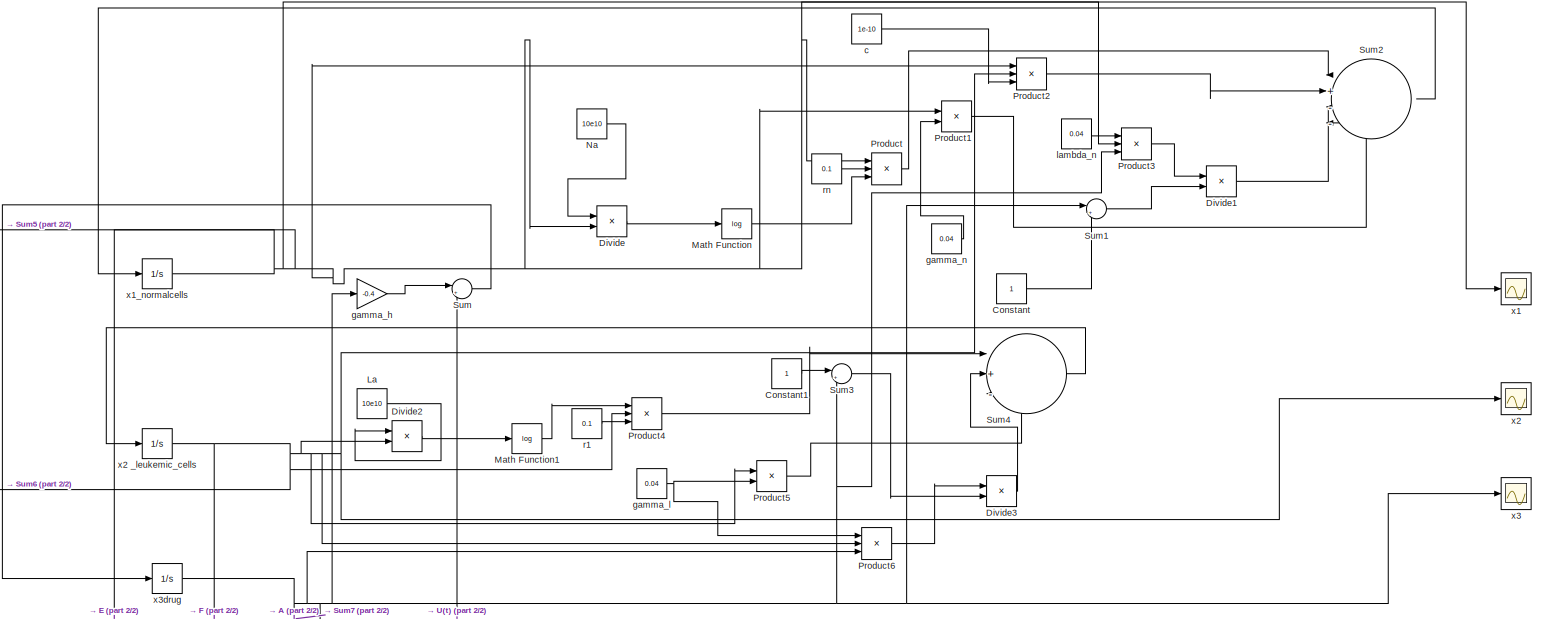
[diagram: root canvas - part 1/2, full width, top band]
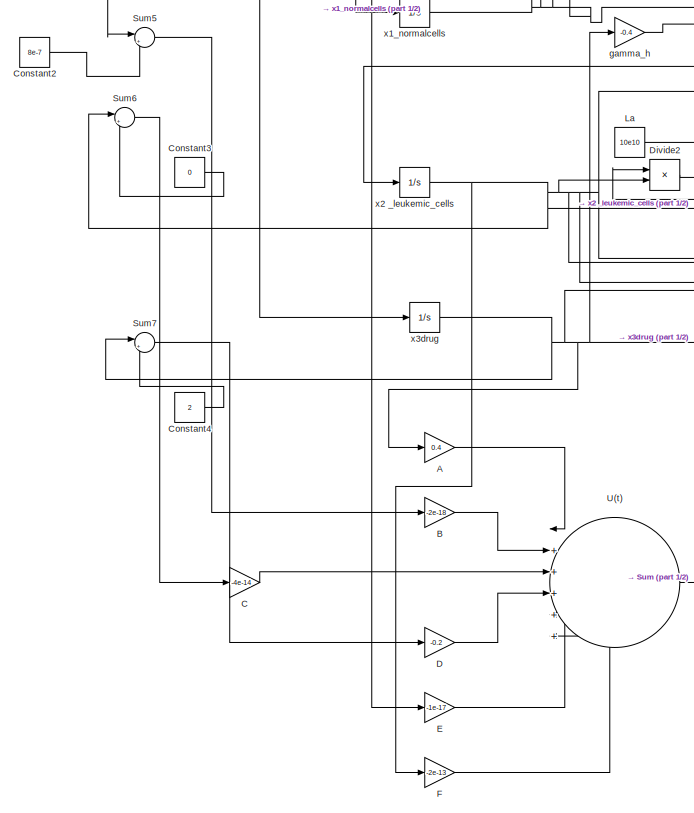
[diagram: root canvas - part 2/2, middle left region]
MODEL slx_fbb6df87b319
KIND model
CONFIG AbsTol = auto
CONFIG EnableMultiTasking = off
CONFIG FixedStep = auto
CONFIG MaxStep = auto
CONFIG MinStep = auto
CONFIG RelTol = 1e-3
CONFIG SampleTimeConstraint = Unconstrained
CONFIG SolverName = VariableStepAuto
CONFIG StartTime = 0.0
CONFIG StopTime = 20
BLOCK [Gain] A
  Gain = 0.4
BLOCK [Gain] B
  Gain = -2e-18
BLOCK [Gain] C
  Gain = -4e-14
BLOCK [Constant] Constant
BLOCK [Constant] Constant1
BLOCK [Constant] Constant2
  Value = 8e-7
BLOCK [Constant] Constant3
  Value = 0
BLOCK [Constant] Constant4
  Value = 2
BLOCK [Gain] D
  Gain = -0.2
BLOCK [Product] Divide
  Inputs = /*
BLOCK [Product] Divide1
  Inputs = */
BLOCK [Product] Divide2
  Inputs = /*
BLOCK [Product] Divide3
  Inputs = */
BLOCK [Gain] E
  Gain = -1e-17
BLOCK [Gain] F
  Gain = -2e-13
BLOCK [Constant] La
  Value = 10e10
BLOCK [Math] Math Function
  Operator = log
BLOCK [Math] Math Function1
  Operator = log
BLOCK [Constant] Na
  Value = 10e10
BLOCK [Product] Product
  Inputs = 3
BLOCK [Product] Product1
BLOCK [Product] Product2
  Inputs = 3
BLOCK [Product] Product3
  Inputs = 3
BLOCK [Product] Product4
  Inputs = 3
BLOCK [Product] Product5
BLOCK [Product] Product6
  Inputs = 3
BLOCK [Sum] Sum
  Inputs = |++
BLOCK [Sum] Sum1
  Inputs = |++
BLOCK [Sum] Sum2
  Inputs = |+---
BLOCK [Sum] Sum3
  Inputs = |++
BLOCK [Sum] Sum4
  Inputs = |+--
BLOCK [Sum] Sum5
  Inputs = |+-
BLOCK [Sum] Sum6
  Inputs = |+-
BLOCK [Sum] Sum7
  Inputs = |+-
BLOCK [Sum] U(t)
  Inputs = |++++++
BLOCK [Constant] c
  Value = 1e-10
BLOCK [Gain] gamma_h
  Gain = -0.4
BLOCK [Constant] gamma_l
  Value = 0.04
BLOCK [Constant] gamma_n
  Value = 0.04
BLOCK [Constant] lambda_n
  Value = 0.04
BLOCK [Constant] r1
  Value = 0.1
BLOCK [Constant] rn
  Value = 0.1
BLOCK [Scope] x1
  Floating = off
  NumInputPorts = 1
  ScopeSpecificationString = Simulink.scopes.TimeScopeBlockCfg('CurrentConfiguration', extmgr.ConfigurationSet(extmgr.Configuration('Core','General UI',true),extmgr.Configuration('Core','Source UI',true),extmgr.Configuration('Sources','WiredSimulink',true),extmgr.Configuration('Visuals','Time Domain',true,'SerializedDisplays',{struct('MinYLimReal','-125000000.00000','MaxYLimReal','1125000000.00000','YLabelReal','','MinYLimMag...<+1489ch>
BLOCK [Integrator] x1_normalcells
  InitialCondition = 10e8
BLOCK [Scope] x2
  Floating = off
  NumInputPorts = 1
  ScopeSpecificationString = Simulink.scopes.TimeScopeBlockCfg('CurrentConfiguration', extmgr.ConfigurationSet(extmgr.Configuration('Core','General UI',true),extmgr.Configuration('Core','Source UI',true),extmgr.Configuration('Sources','WiredSimulink',true,'DataLoggingVariableName','ScopeData1'),extmgr.Configuration('Visuals','Time Domain',true,'SerializedDisplays',{struct('MinYLimReal','-22500000.00000','MaxYLimReal','2025000...<+1605ch>
BLOCK [Integrator] x2 _leukemic_cells
  InitialCondition = 1.8e8
BLOCK [Scope] x3
  Floating = off
  NumInputPorts = 1
  ScopeSpecificationString = Simulink.scopes.TimeScopeBlockCfg('CurrentConfiguration', extmgr.ConfigurationSet(extmgr.Configuration('Core','General UI',true),extmgr.Configuration('Core','Source UI',true),extmgr.Configuration('Sources','WiredSimulink',true,'DataLoggingVariableName','ScopeData2'),extmgr.Configuration('Visuals','Time Domain',true,'SerializedDisplays',{struct('MinYLimReal','-0.24542','MaxYLimReal','2.20879','YLab...<+1454ch>
BLOCK [Integrator] x3drug
LINE A:1 -> U(t):1
LINE B:1 -> U(t):2
LINE C:1 -> U(t):3
LINE Constant1:1 -> Sum3:1
LINE Constant2:1 -> Sum5:2
LINE Constant3:1 -> Sum6:2
LINE Constant4:1 -> Sum7:2
LINE Constant:1 -> Sum1:2
LINE D:1 -> U(t):4
LINE Divide1:1 -> Sum2:3
LINE Divide2:1 -> Math Function1:1
LINE Divide3:1 -> Sum4:2
LINE Divide:1 -> Math Function:1
LINE E:1 -> U(t):5
LINE F:1 -> U(t):6
LINE La:1 -> Divide2:1
LINE Math Function1:1 -> Product4:1
LINE Math Function:1 -> Product:3
LINE Na:1 -> Divide:1
LINE Product1:1 -> Sum2:4
LINE Product2:1 -> Sum2:2
LINE Product3:1 -> Divide1:1
LINE Product4:1 -> Sum4:1
LINE Product5:1 -> Sum4:3
LINE Product6:1 -> Divide3:1
LINE Product:1 -> Sum2:1
LINE Sum1:1 -> Divide1:2
LINE Sum2:1 -> x1_normalcells:1
LINE Sum3:1 -> Divide3:2
LINE Sum4:1 -> x2 _leukemic_cells:1
LINE Sum5:1 -> B:1
LINE Sum6:1 -> C:1
LINE Sum7:1 -> D:1
LINE Sum:1 -> x3drug:1
LINE U(t):1 -> Sum:2
LINE c:1 -> Product2:3
LINE gamma_h:1 -> Sum:1
NET gamma_l:1 -> Product5:2, Product6:1
LINE gamma_n:1 -> Product1:2
LINE lambda_n:1 -> Product3:1
LINE r1:1 -> Product4:3
LINE rn:1 -> Product:2
NET x1_normalcells:1 -> Divide:2, E:1, Product1:1, Product2:1, Product3:2, Product:1, Sum5:1, x1:1
NET x2 _leukemic_cells:1 -> Divide2:2, F:1, Product2:2, Product4:2, Product5:1, Product6:2, Sum6:1, x2:1
NET x3drug:1 -> A:1, Product3:3, Product6:3, Sum1:1, Sum3:2, Sum7:1, gamma_h:1, x3:1
note: NET lines group one-source signal fan-out (src -> all destinations, sorted); 1:1 wires keep LINE
